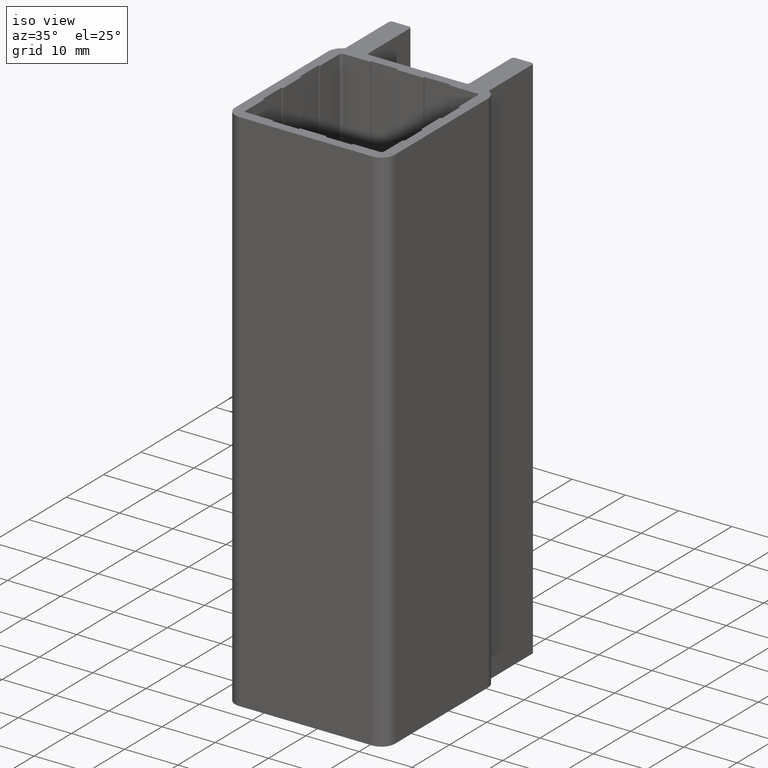
[diagram: clean part render]
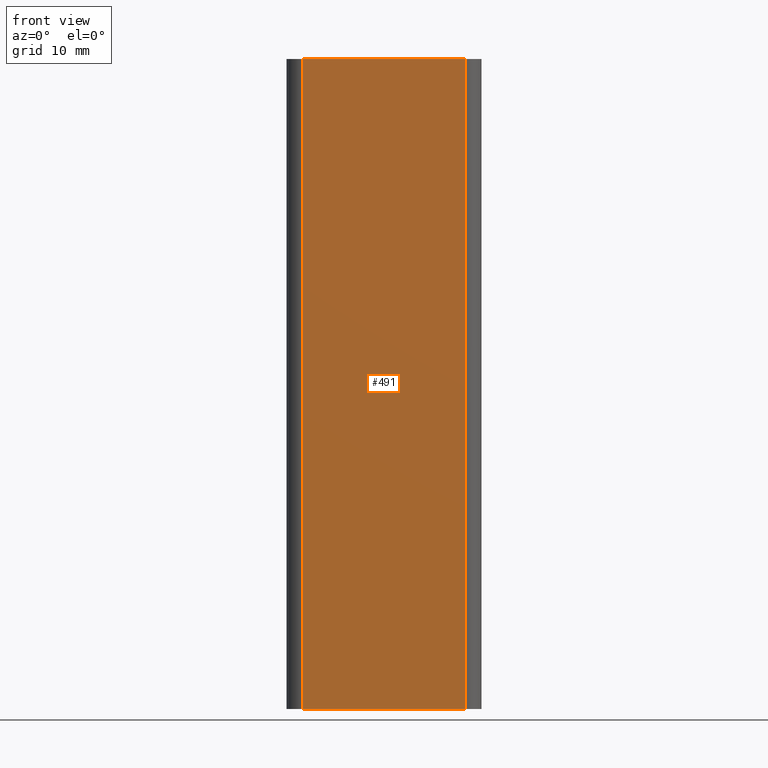
[diagram: tour spotlight — one face highlighted and labeled with its STEP entity id]
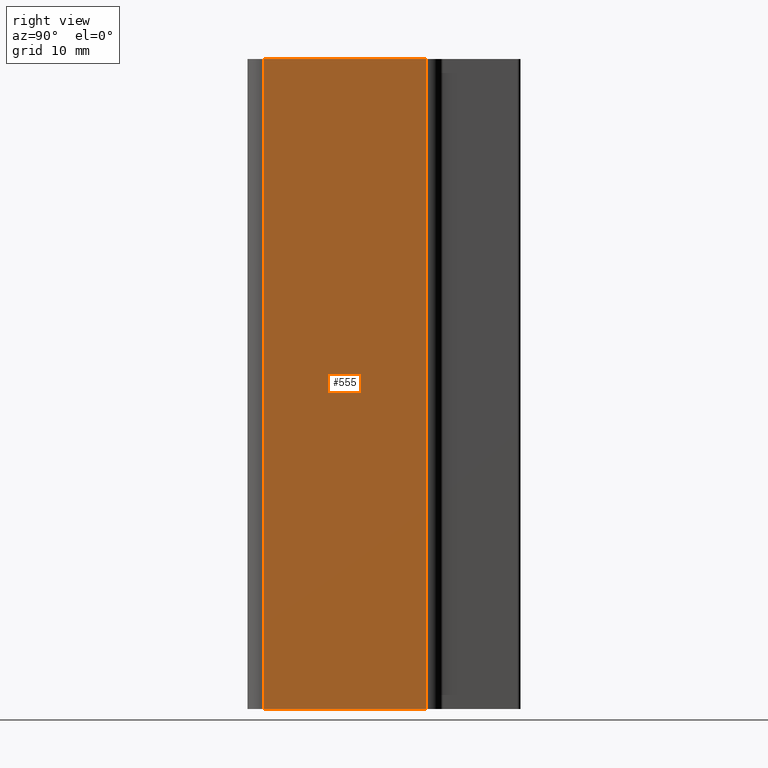
[diagram: tour spotlight — one face highlighted and labeled with its STEP entity id]
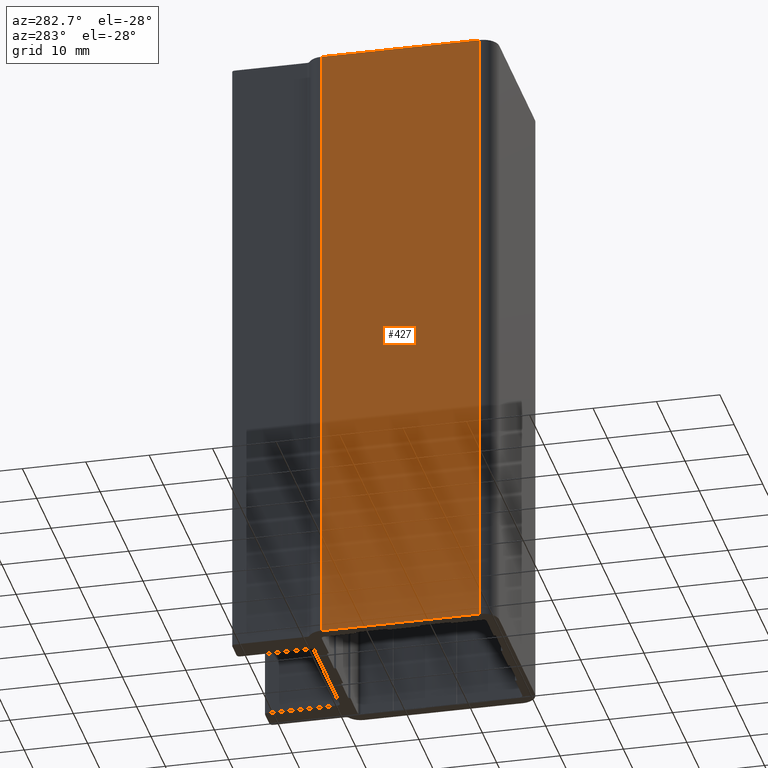
[diagram: tour spotlight — one face highlighted and labeled with its STEP entity id]
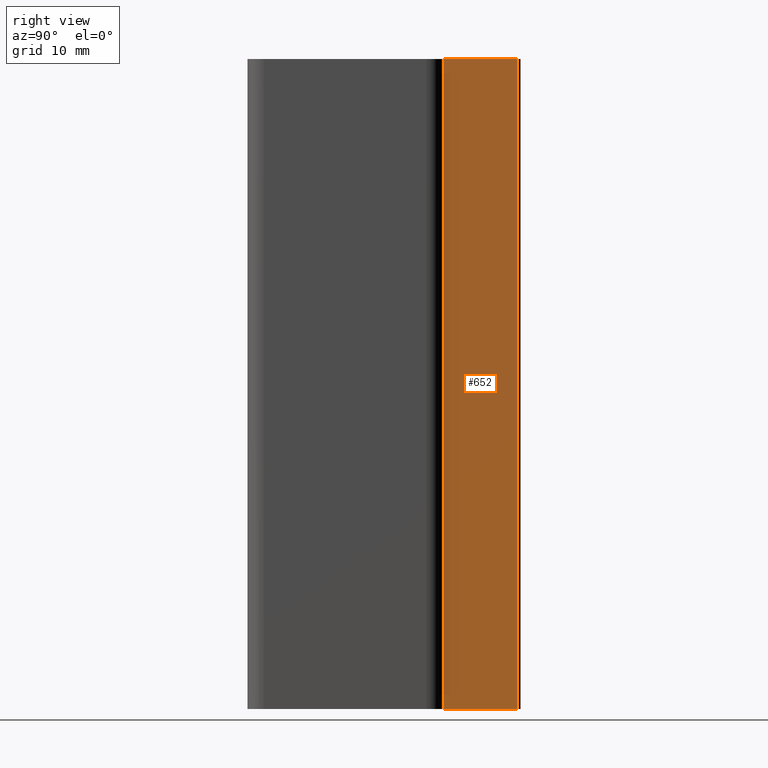
[diagram: tour spotlight — one face highlighted and labeled with its STEP entity id]
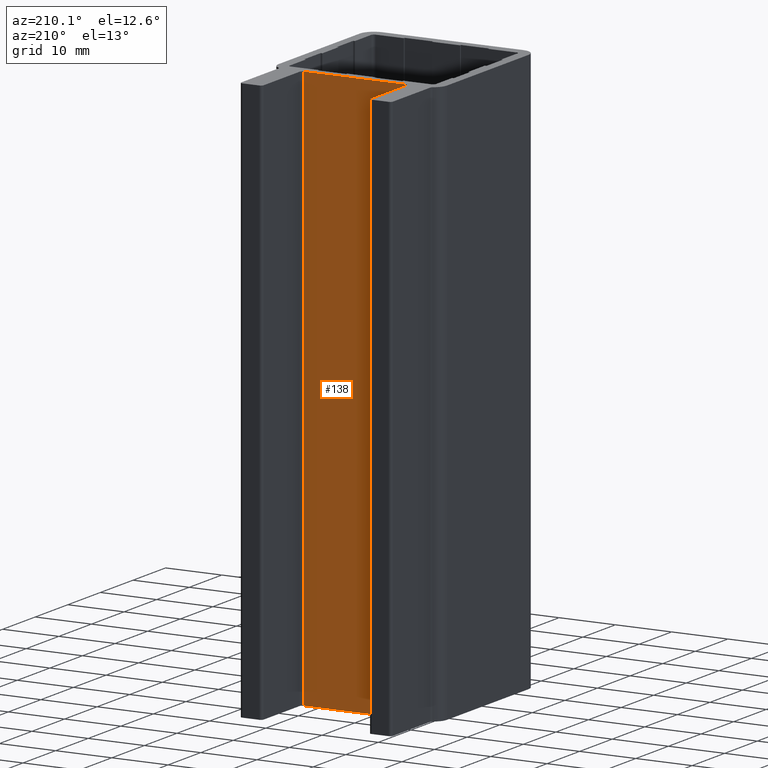
[diagram: tour spotlight — one face highlighted and labeled with its STEP entity id]
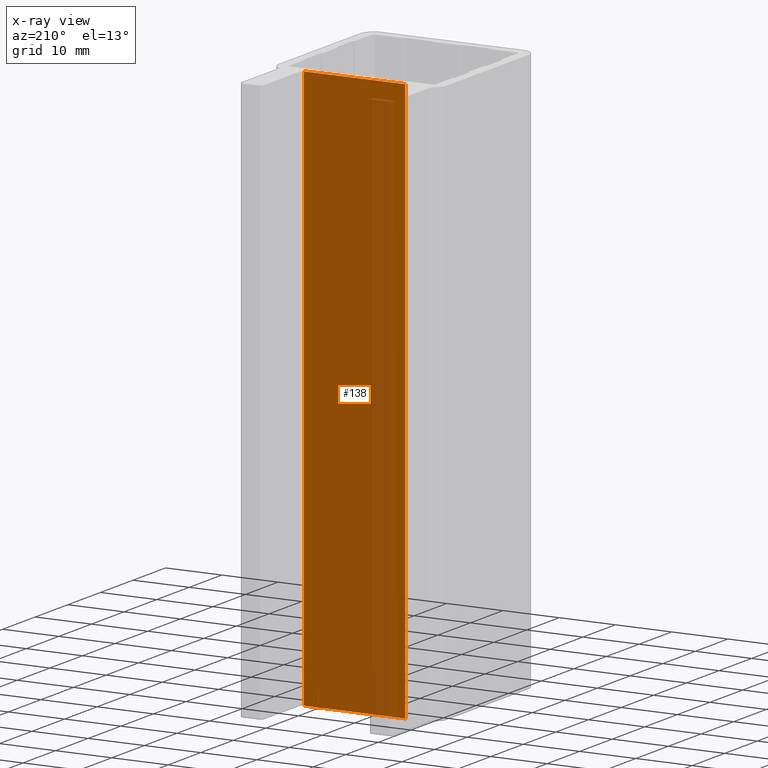
[diagram: x-ray of the same camera — body ghosted, this tour face saturated]
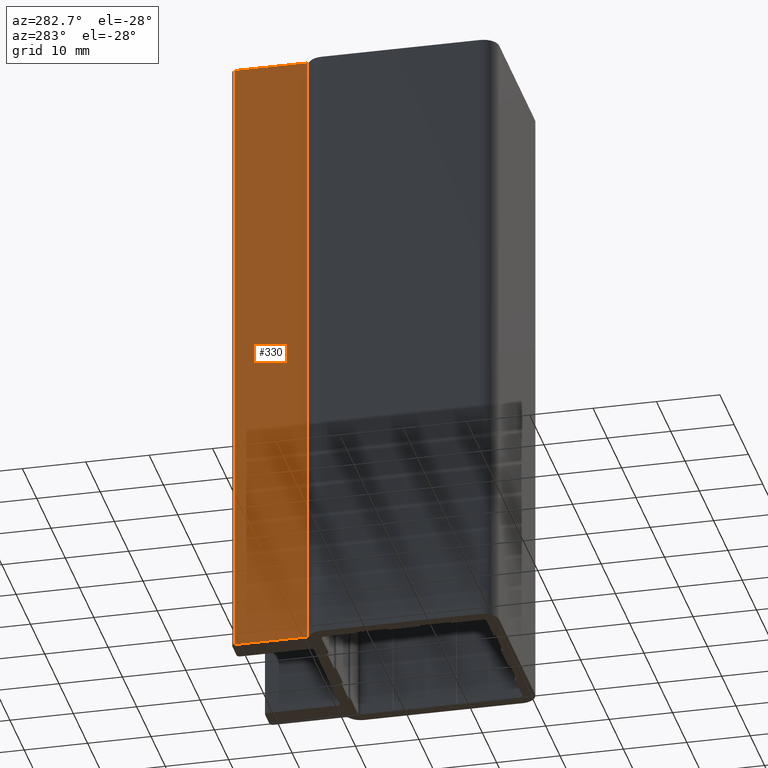
[diagram: tour spotlight — one face highlighted and labeled with its STEP entity id]
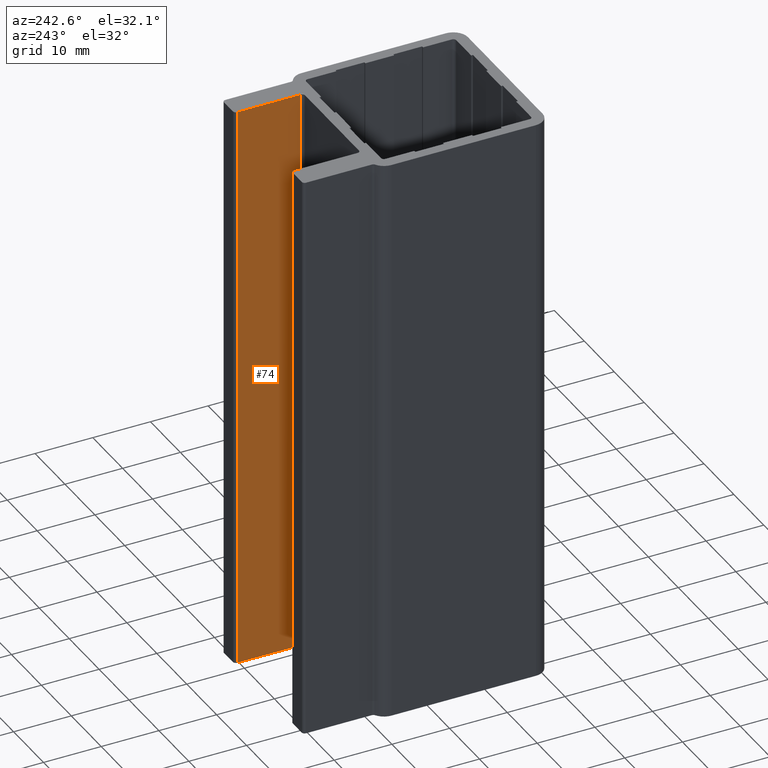
[diagram: tour spotlight — one face highlighted and labeled with its STEP entity id]
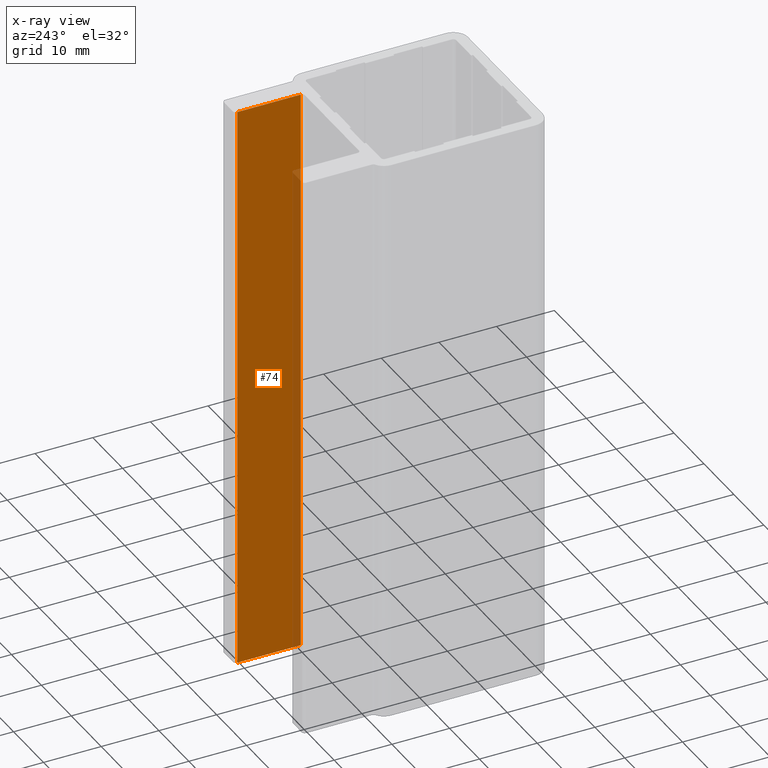
[diagram: x-ray of the same camera — body ghosted, this tour face saturated]
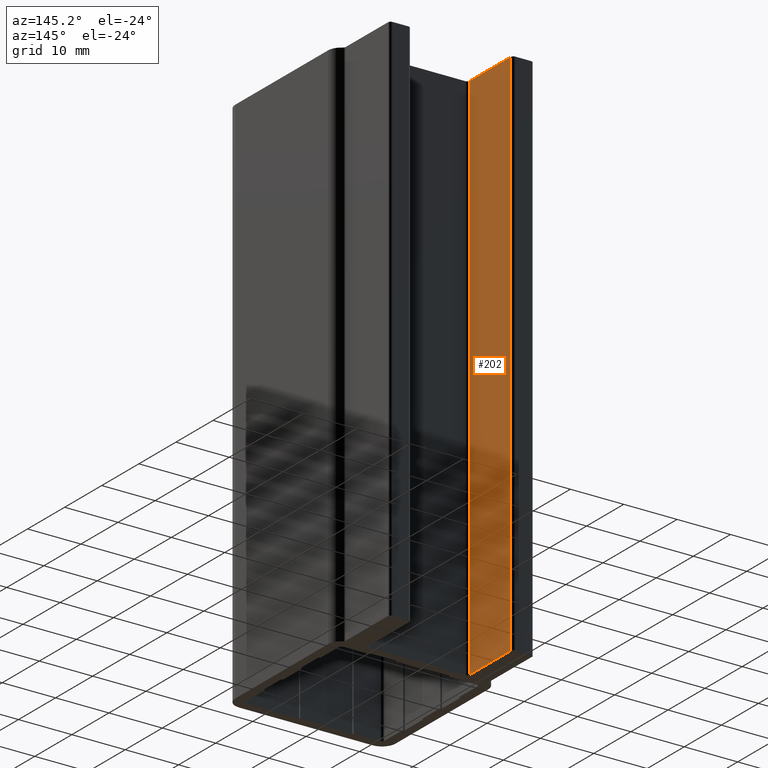
[diagram: tour spotlight — one face highlighted and labeled with its STEP entity id]
A machine part: a face-by-face anatomy tour. The part has 64 B-rep faces; the first image is the clean iso view, then the 8 largest visible faces are spotlighted one at a time (largest first), each with its STEP entity span.

Face 1 — front view, entity #491. In plain terms, the highlighted planar face has unit normal (0, 1, 0).
Definition (entity closure, byte-faithful):
#434=CARTESIAN_POINT('',(-12.499999999984936,0.0,0.0));
#435=VERTEX_POINT('',#434);
#443=CARTESIAN_POINT('',(-12.499999999984936,0.0,100.0));
#444=VERTEX_POINT('',#443);
#445=CARTESIAN_POINT('',(-12.499999999984936,0.0,100.0));
#446=DIRECTION('',(0.0,0.0,-1.0));
#447=VECTOR('',#446,100.0);
#448=LINE('',#445,#447);
#449=EDGE_CURVE('',#444,#435,#448,.T.);
#461=CARTESIAN_POINT('',(-12.499999999984936,0.0,100.0));
#462=DIRECTION('',(0.0,1.0,0.0));
#463=DIRECTION('',(1.0,0.0,0.0));
#464=AXIS2_PLACEMENT_3D('',#461,#462,#463);
#465=PLANE('',#464);
#466=ORIENTED_EDGE('',*,*,#449,.T.);
#467=CARTESIAN_POINT('',(12.499999999984936,0.0,0.0));
#468=VERTEX_POINT('',#467);
#469=CARTESIAN_POINT('',(-12.499999999984936,0.0,0.0));
#470=DIRECTION('',(1.0,0.0,0.0));
#471=VECTOR('',#470,24.999999999969873);
#472=LINE('',#469,#471);
#473=EDGE_CURVE('',#435,#468,#472,.T.);
#474=ORIENTED_EDGE('',*,*,#473,.T.);
#475=CARTESIAN_POINT('',(12.499999999984936,0.0,100.0));
#476=VERTEX_POINT('',#475);
#477=CARTESIAN_POINT('',(12.499999999984936,0.0,100.0));
#478=DIRECTION('',(0.0,0.0,-1.0));
#479=VECTOR('',#478,100.0);
#480=LINE('',#477,#479);
#481=EDGE_CURVE('',#476,#468,#480,.T.);
#482=ORIENTED_EDGE('',*,*,#481,.F.);
#483=CARTESIAN_POINT('',(-12.499999999984936,0.0,100.0));
#484=DIRECTION('',(1.0,0.0,0.0));
#485=VECTOR('',#484,24.999999999969873);
#486=LINE('',#483,#485);
#487=EDGE_CURVE('',#444,#476,#486,.T.);
#488=ORIENTED_EDGE('',*,*,#487,.F.);
#489=EDGE_LOOP('',(#466,#474,#482,#488));
#490=FACE_OUTER_BOUND('',#489,.T.);
#491=ADVANCED_FACE('',(#490),#465,.F.);

Face 2 — right view, entity #555. In plain terms, the highlighted planar face has unit normal (-1, 0, 0).
Definition (entity closure, byte-faithful):
#498=CARTESIAN_POINT('',(14.999999999984936,2.500000000000000,0.0));
#499=VERTEX_POINT('',#498);
#507=CARTESIAN_POINT('',(14.999999999984936,2.500000000000000,100.0));
#508=VERTEX_POINT('',#507);
#509=CARTESIAN_POINT('',(14.999999999984936,2.500000000000000,100.0));
#510=DIRECTION('',(0.0,0.0,-1.0));
#511=VECTOR('',#510,100.0);
#512=LINE('',#509,#511);
#513=EDGE_CURVE('',#508,#499,#512,.T.);
#525=CARTESIAN_POINT('',(14.999999999984936,2.500000000000000,100.0));
#526=DIRECTION('',(-1.0,0.0,0.0));
#527=DIRECTION('',(0.0,1.0,0.0));
#528=AXIS2_PLACEMENT_3D('',#525,#526,#527);
#529=PLANE('',#528);
#530=ORIENTED_EDGE('',*,*,#513,.T.);
#531=CARTESIAN_POINT('',(14.999999999984936,27.499999999972601,0.0));
#532=VERTEX_POINT('',#531);
#533=CARTESIAN_POINT('',(14.999999999984936,2.500000000000000,0.0));
#534=DIRECTION('',(0.0,1.0,0.0));
#535=VECTOR('',#534,24.999999999972601);
#536=LINE('',#533,#535);
#537=EDGE_CURVE('',#499,#532,#536,.T.);
#538=ORIENTED_EDGE('',*,*,#537,.T.);
#539=CARTESIAN_POINT('',(14.999999999984936,27.499999999972601,100.0));
#540=VERTEX_POINT('',#539);
#541=CARTESIAN_POINT('',(14.999999999984936,27.499999999972601,100.0));
#542=DIRECTION('',(0.0,0.0,-1.0));
#543=VECTOR('',#542,100.0);
#544=LINE('',#541,#543);
#545=EDGE_CURVE('',#540,#532,#544,.T.);
#546=ORIENTED_EDGE('',*,*,#545,.F.);
#547=CARTESIAN_POINT('',(14.999999999984936,2.500000000000000,100.0));
#548=DIRECTION('',(0.0,1.0,0.0));
#549=VECTOR('',#548,24.999999999972601);
#550=LINE('',#547,#549);
#551=EDGE_CURVE('',#508,#540,#550,.T.);
#552=ORIENTED_EDGE('',*,*,#551,.F.);
#553=EDGE_LOOP('',(#530,#538,#546,#552));
#554=FACE_OUTER_BOUND('',#553,.T.);
#555=ADVANCED_FACE('',(#554),#529,.F.);

Face 3 — auxiliary view, entity #427. In plain terms, the highlighted planar face has unit normal (1, 0, 0).
Definition (entity closure, byte-faithful):
#370=CARTESIAN_POINT('',(-14.999999999985050,27.499999999972601,0.0));
#371=VERTEX_POINT('',#370);
#379=CARTESIAN_POINT('',(-14.999999999985050,27.499999999972601,100.0));
#380=VERTEX_POINT('',#379);
#381=CARTESIAN_POINT('',(-14.999999999985050,27.499999999972601,100.0));
#382=DIRECTION('',(0.0,0.0,-1.0));
#383=VECTOR('',#382,100.0);
#384=LINE('',#381,#383);
#385=EDGE_CURVE('',#380,#371,#384,.T.);
#397=CARTESIAN_POINT('',(-14.999999999985050,27.499999999972601,100.0));
#398=DIRECTION('',(1.0,0.0,0.0));
#399=DIRECTION('',(0.0,-1.0,0.0));
#400=AXIS2_PLACEMENT_3D('',#397,#398,#399);
#401=PLANE('',#400);
#402=ORIENTED_EDGE('',*,*,#385,.T.);
#403=CARTESIAN_POINT('',(-14.999999999984936,2.500000000000000,0.0));
#404=VERTEX_POINT('',#403);
#405=CARTESIAN_POINT('',(-14.999999999985050,27.499999999972601,0.0));
#406=DIRECTION('',(0.0,-1.0,0.0));
#407=VECTOR('',#406,24.999999999972601);
#408=LINE('',#405,#407);
#409=EDGE_CURVE('',#371,#404,#408,.T.);
#410=ORIENTED_EDGE('',*,*,#409,.T.);
#411=CARTESIAN_POINT('',(-14.999999999984936,2.500000000000000,100.0));
#412=VERTEX_POINT('',#411);
#413=CARTESIAN_POINT('',(-14.999999999984936,2.500000000000000,100.0));
#414=DIRECTION('',(0.0,0.0,-1.0));
#415=VECTOR('',#414,100.0);
#416=LINE('',#413,#415);
#417=EDGE_CURVE('',#412,#404,#416,.T.);
#418=ORIENTED_EDGE('',*,*,#417,.F.);
#419=CARTESIAN_POINT('',(-14.999999999985050,27.499999999972601,100.0));
#420=DIRECTION('',(0.0,-1.0,0.0));
#421=VECTOR('',#420,24.999999999972601);
#422=LINE('',#419,#421);
#423=EDGE_CURVE('',#380,#412,#422,.T.);
#424=ORIENTED_EDGE('',*,*,#423,.F.);
#425=EDGE_LOOP('',(#402,#410,#418,#424));
#426=FACE_OUTER_BOUND('',#425,.T.);
#427=ADVANCED_FACE('',(#426),#401,.F.);

Face 4 — right view, entity #652. In plain terms, the highlighted planar face has unit normal (-1, 0, 0).
Definition (entity closure, byte-faithful):
#595=CARTESIAN_POINT('',(13.500000000005684,30.098076211474563,0.0));
#596=VERTEX_POINT('',#595);
#604=CARTESIAN_POINT('',(13.500000000005684,30.098076211474563,100.0));
#605=VERTEX_POINT('',#604);
#606=CARTESIAN_POINT('',(13.500000000005684,30.098076211474563,100.0));
#607=DIRECTION('',(0.0,0.0,-1.0));
#608=VECTOR('',#607,100.0);
#609=LINE('',#606,#608);
#610=EDGE_CURVE('',#605,#596,#609,.T.);
#622=CARTESIAN_POINT('',(13.500000000005684,30.098076211474563,100.0));
#623=DIRECTION('',(-1.0,0.0,0.0));
#624=DIRECTION('',(0.0,1.0,0.0));
#625=AXIS2_PLACEMENT_3D('',#622,#623,#624);
#626=PLANE('',#625);
#627=ORIENTED_EDGE('',*,*,#610,.T.);
#628=CARTESIAN_POINT('',(13.500000000005684,41.500000000124601,0.0));
#629=VERTEX_POINT('',#628);
#630=CARTESIAN_POINT('',(13.500000000005684,30.098076211474563,0.0));
#631=DIRECTION('',(0.0,1.0,0.0));
#632=VECTOR('',#631,11.401923788650038);
#633=LINE('',#630,#632);
#634=EDGE_CURVE('',#596,#629,#633,.T.);
#635=ORIENTED_EDGE('',*,*,#634,.T.);
#636=CARTESIAN_POINT('',(13.500000000005684,41.500000000124601,100.0));
#637=VERTEX_POINT('',#636);
#638=CARTESIAN_POINT('',(13.500000000005684,41.500000000124601,100.0));
#639=DIRECTION('',(0.0,0.0,-1.0));
#640=VECTOR('',#639,100.0);
#641=LINE('',#638,#640);
#642=EDGE_CURVE('',#637,#629,#641,.T.);
#643=ORIENTED_EDGE('',*,*,#642,.F.);
#644=CARTESIAN_POINT('',(13.500000000005684,30.098076211474563,100.0));
#645=DIRECTION('',(0.0,1.0,0.0));
#646=VECTOR('',#645,11.401923788650038);
#647=LINE('',#644,#646);
#648=EDGE_CURVE('',#605,#637,#647,.T.);
#649=ORIENTED_EDGE('',*,*,#648,.F.);
#650=EDGE_LOOP('',(#627,#635,#643,#649));
#651=FACE_OUTER_BOUND('',#650,.T.);
#652=ADVANCED_FACE('',(#651),#626,.F.);

Face 5 — auxiliary view, entity #138. An x-ray twin of the same camera follows (body ghosted, this face saturated) — the face is partly hidden behind the body. In plain terms, the highlighted planar face has unit normal (0, -1, 0).
Definition (entity closure, byte-faithful):
#81=CARTESIAN_POINT('',(9.000000000005571,30.000000000124601,0.0));
#82=VERTEX_POINT('',#81);
#90=CARTESIAN_POINT('',(9.000000000005571,30.000000000124601,100.0));
#91=VERTEX_POINT('',#90);
#92=CARTESIAN_POINT('',(9.000000000005571,30.000000000124601,100.0));
#93=DIRECTION('',(0.0,0.0,-1.0));
#94=VECTOR('',#93,100.0);
#95=LINE('',#92,#94);
#96=EDGE_CURVE('',#91,#82,#95,.T.);
#108=CARTESIAN_POINT('',(9.000000000005571,30.000000000124601,100.0));
#109=DIRECTION('',(0.0,-1.0,0.0));
#110=DIRECTION('',(-1.0,0.0,0.0));
#111=AXIS2_PLACEMENT_3D('',#108,#109,#110);
#112=PLANE('',#111);
#113=ORIENTED_EDGE('',*,*,#96,.T.);
#114=CARTESIAN_POINT('',(-8.999999999994714,30.000000000124601,0.0));
#115=VERTEX_POINT('',#114);
#116=CARTESIAN_POINT('',(9.000000000005571,30.000000000124601,0.0));
#117=DIRECTION('',(-1.0,0.0,0.0));
#118=VECTOR('',#117,18.000000000000284);
#119=LINE('',#116,#118);
#120=EDGE_CURVE('',#82,#115,#119,.T.);
#121=ORIENTED_EDGE('',*,*,#120,.T.);
#122=CARTESIAN_POINT('',(-8.999999999994714,30.000000000124601,100.0));
#123=VERTEX_POINT('',#122);
#124=CARTESIAN_POINT('',(-8.999999999994714,30.000000000124601,100.0));
#125=DIRECTION('',(0.0,0.0,-1.0));
#126=VECTOR('',#125,100.0);
#127=LINE('',#124,#126);
#128=EDGE_CURVE('',#123,#115,#127,.T.);
#129=ORIENTED_EDGE('',*,*,#128,.F.);
#130=CARTESIAN_POINT('',(9.000000000005571,30.000000000124601,100.0));
#131=DIRECTION('',(-1.0,0.0,0.0));
#132=VECTOR('',#131,18.000000000000284);
#133=LINE('',#130,#132);
#134=EDGE_CURVE('',#91,#123,#133,.T.);
#135=ORIENTED_EDGE('',*,*,#134,.F.);
#136=EDGE_LOOP('',(#113,#121,#129,#135));
#137=FACE_OUTER_BOUND('',#136,.T.);
#138=ADVANCED_FACE('',(#137),#112,.F.);

Face 6 — auxiliary view, entity #330. In plain terms, the highlighted planar face has unit normal (1, 0, 0).
Definition (entity closure, byte-faithful):
#273=CARTESIAN_POINT('',(-13.499999999987381,41.500000000135287,0.0));
#274=VERTEX_POINT('',#273);
#282=CARTESIAN_POINT('',(-13.499999999987381,41.500000000135287,100.0));
#283=VERTEX_POINT('',#282);
#284=CARTESIAN_POINT('',(-13.499999999987381,41.500000000135287,100.0));
#285=DIRECTION('',(0.0,0.0,-1.0));
#286=VECTOR('',#285,100.0);
#287=LINE('',#284,#286);
#288=EDGE_CURVE('',#283,#274,#287,.T.);
#300=CARTESIAN_POINT('',(-13.499999999987381,41.500000000135287,100.0));
#301=DIRECTION('',(1.0,2.044024E-013,0.0));
#302=DIRECTION('',(2.044024E-013,-1.0,0.0));
#303=AXIS2_PLACEMENT_3D('',#300,#301,#302);
#304=PLANE('',#303);
#305=ORIENTED_EDGE('',*,*,#288,.T.);
#306=CARTESIAN_POINT('',(-13.499999999985050,30.098076211319494,0.0));
#307=VERTEX_POINT('',#306);
#308=CARTESIAN_POINT('',(-13.499999999987381,41.500000000135287,0.0));
#309=DIRECTION('',(2.044024E-013,-1.0,0.0));
#310=VECTOR('',#309,11.401923788815793);
#311=LINE('',#308,#310);
#312=EDGE_CURVE('',#274,#307,#311,.T.);
#313=ORIENTED_EDGE('',*,*,#312,.T.);
#314=CARTESIAN_POINT('',(-13.499999999985050,30.098076211319494,100.0));
#315=VERTEX_POINT('',#314);
#316=CARTESIAN_POINT('',(-13.499999999985050,30.098076211319494,100.0));
#317=DIRECTION('',(0.0,0.0,-1.0));
#318=VECTOR('',#317,100.0);
#319=LINE('',#316,#318);
#320=EDGE_CURVE('',#315,#307,#319,.T.);
#321=ORIENTED_EDGE('',*,*,#320,.F.);
#322=CARTESIAN_POINT('',(-13.499999999987381,41.500000000135287,100.0));
#323=DIRECTION('',(2.044024E-013,-1.0,0.0));
#324=VECTOR('',#323,11.401923788815793);
#325=LINE('',#322,#324);
#326=EDGE_CURVE('',#283,#315,#325,.T.);
#327=ORIENTED_EDGE('',*,*,#326,.F.);
#328=EDGE_LOOP('',(#305,#313,#321,#327));
#329=FACE_OUTER_BOUND('',#328,.T.);
#330=ADVANCED_FACE('',(#329),#304,.F.);

Face 7 — auxiliary view, entity #74. An x-ray twin of the same camera follows (body ghosted, this face saturated) — the face is partly hidden behind the body. In plain terms, the highlighted planar face has unit normal (1, 0, 0).
Definition (entity closure, byte-faithful):
#17=CARTESIAN_POINT('',(9.500000000005571,41.500000000124601,0.0));
#18=VERTEX_POINT('',#17);
#26=CARTESIAN_POINT('',(9.500000000005571,41.500000000124601,100.0));
#27=VERTEX_POINT('',#26);
#28=CARTESIAN_POINT('',(9.500000000005571,41.500000000124601,100.0));
#29=DIRECTION('',(0.0,0.0,-1.0));
#30=VECTOR('',#29,100.0);
#31=LINE('',#28,#30);
#32=EDGE_CURVE('',#27,#18,#31,.T.);
#44=CARTESIAN_POINT('',(9.500000000005571,41.500000000124601,100.0));
#45=DIRECTION('',(1.0,0.0,0.0));
#46=DIRECTION('',(0.0,-1.0,0.0));
#47=AXIS2_PLACEMENT_3D('',#44,#45,#46);
#48=PLANE('',#47);
#49=ORIENTED_EDGE('',*,*,#32,.T.);
#50=CARTESIAN_POINT('',(9.500000000005571,30.500000000124601,0.0));
#51=VERTEX_POINT('',#50);
#52=CARTESIAN_POINT('',(9.500000000005571,41.500000000124601,0.0));
#53=DIRECTION('',(0.0,-1.0,0.0));
#54=VECTOR('',#53,11.0);
#55=LINE('',#52,#54);
#56=EDGE_CURVE('',#18,#51,#55,.T.);
#57=ORIENTED_EDGE('',*,*,#56,.T.);
#58=CARTESIAN_POINT('',(9.500000000005571,30.500000000124601,100.0));
#59=VERTEX_POINT('',#58);
#60=CARTESIAN_POINT('',(9.500000000005571,30.500000000124601,100.0));
#61=DIRECTION('',(0.0,0.0,-1.0));
#62=VECTOR('',#61,100.0);
#63=LINE('',#60,#62);
#64=EDGE_CURVE('',#59,#51,#63,.T.);
#65=ORIENTED_EDGE('',*,*,#64,.F.);
#66=CARTESIAN_POINT('',(9.500000000005571,41.500000000124601,100.0));
#67=DIRECTION('',(0.0,-1.0,0.0));
#68=VECTOR('',#67,11.0);
#69=LINE('',#66,#68);
#70=EDGE_CURVE('',#27,#59,#69,.T.);
#71=ORIENTED_EDGE('',*,*,#70,.F.);
#72=EDGE_LOOP('',(#49,#57,#65,#71));
#73=FACE_OUTER_BOUND('',#72,.T.);
#74=ADVANCED_FACE('',(#73),#48,.F.);

Face 8 — auxiliary view, entity #202. In plain terms, the highlighted planar face has unit normal (-1, 0, 0).
Definition (entity closure, byte-faithful):
#145=CARTESIAN_POINT('',(-9.499999999994827,30.500000000124601,0.0));
#146=VERTEX_POINT('',#145);
#154=CARTESIAN_POINT('',(-9.499999999994827,30.500000000124601,100.0));
#155=VERTEX_POINT('',#154);
#156=CARTESIAN_POINT('',(-9.499999999994827,30.500000000124601,100.0));
#157=DIRECTION('',(0.0,0.0,-1.0));
#158=VECTOR('',#157,100.0);
#159=LINE('',#156,#158);
#160=EDGE_CURVE('',#155,#146,#159,.T.);
#172=CARTESIAN_POINT('',(-9.499999999994827,30.500000000124601,100.0));
#173=DIRECTION('',(-1.0,0.0,0.0));
#174=DIRECTION('',(0.0,1.0,0.0));
#175=AXIS2_PLACEMENT_3D('',#172,#173,#174);
#176=PLANE('',#175);
#177=ORIENTED_EDGE('',*,*,#160,.T.);
#178=CARTESIAN_POINT('',(-9.499999999994827,41.500000000124601,0.0));
#179=VERTEX_POINT('',#178);
#180=CARTESIAN_POINT('',(-9.499999999994827,30.500000000124601,0.0));
#181=DIRECTION('',(0.0,1.0,0.0));
#182=VECTOR('',#181,11.0);
#183=LINE('',#180,#182);
#184=EDGE_CURVE('',#146,#179,#183,.T.);
#185=ORIENTED_EDGE('',*,*,#184,.T.);
#186=CARTESIAN_POINT('',(-9.499999999994827,41.500000000124601,100.0));
#187=VERTEX_POINT('',#186);
#188=CARTESIAN_POINT('',(-9.499999999994827,41.500000000124601,100.0));
#189=DIRECTION('',(0.0,0.0,-1.0));
#190=VECTOR('',#189,100.0);
#191=LINE('',#188,#190);
#192=EDGE_CURVE('',#187,#179,#191,.T.);
#193=ORIENTED_EDGE('',*,*,#192,.F.);
#194=CARTESIAN_POINT('',(-9.499999999994827,30.500000000124601,100.0));
#195=DIRECTION('',(0.0,1.0,0.0));
#196=VECTOR('',#195,11.0);
#197=LINE('',#194,#196);
#198=EDGE_CURVE('',#155,#187,#197,.T.);
#199=ORIENTED_EDGE('',*,*,#198,.F.);
#200=EDGE_LOOP('',(#177,#185,#193,#199));
#201=FACE_OUTER_BOUND('',#200,.T.);
#202=ADVANCED_FACE('',(#201),#176,.F.);